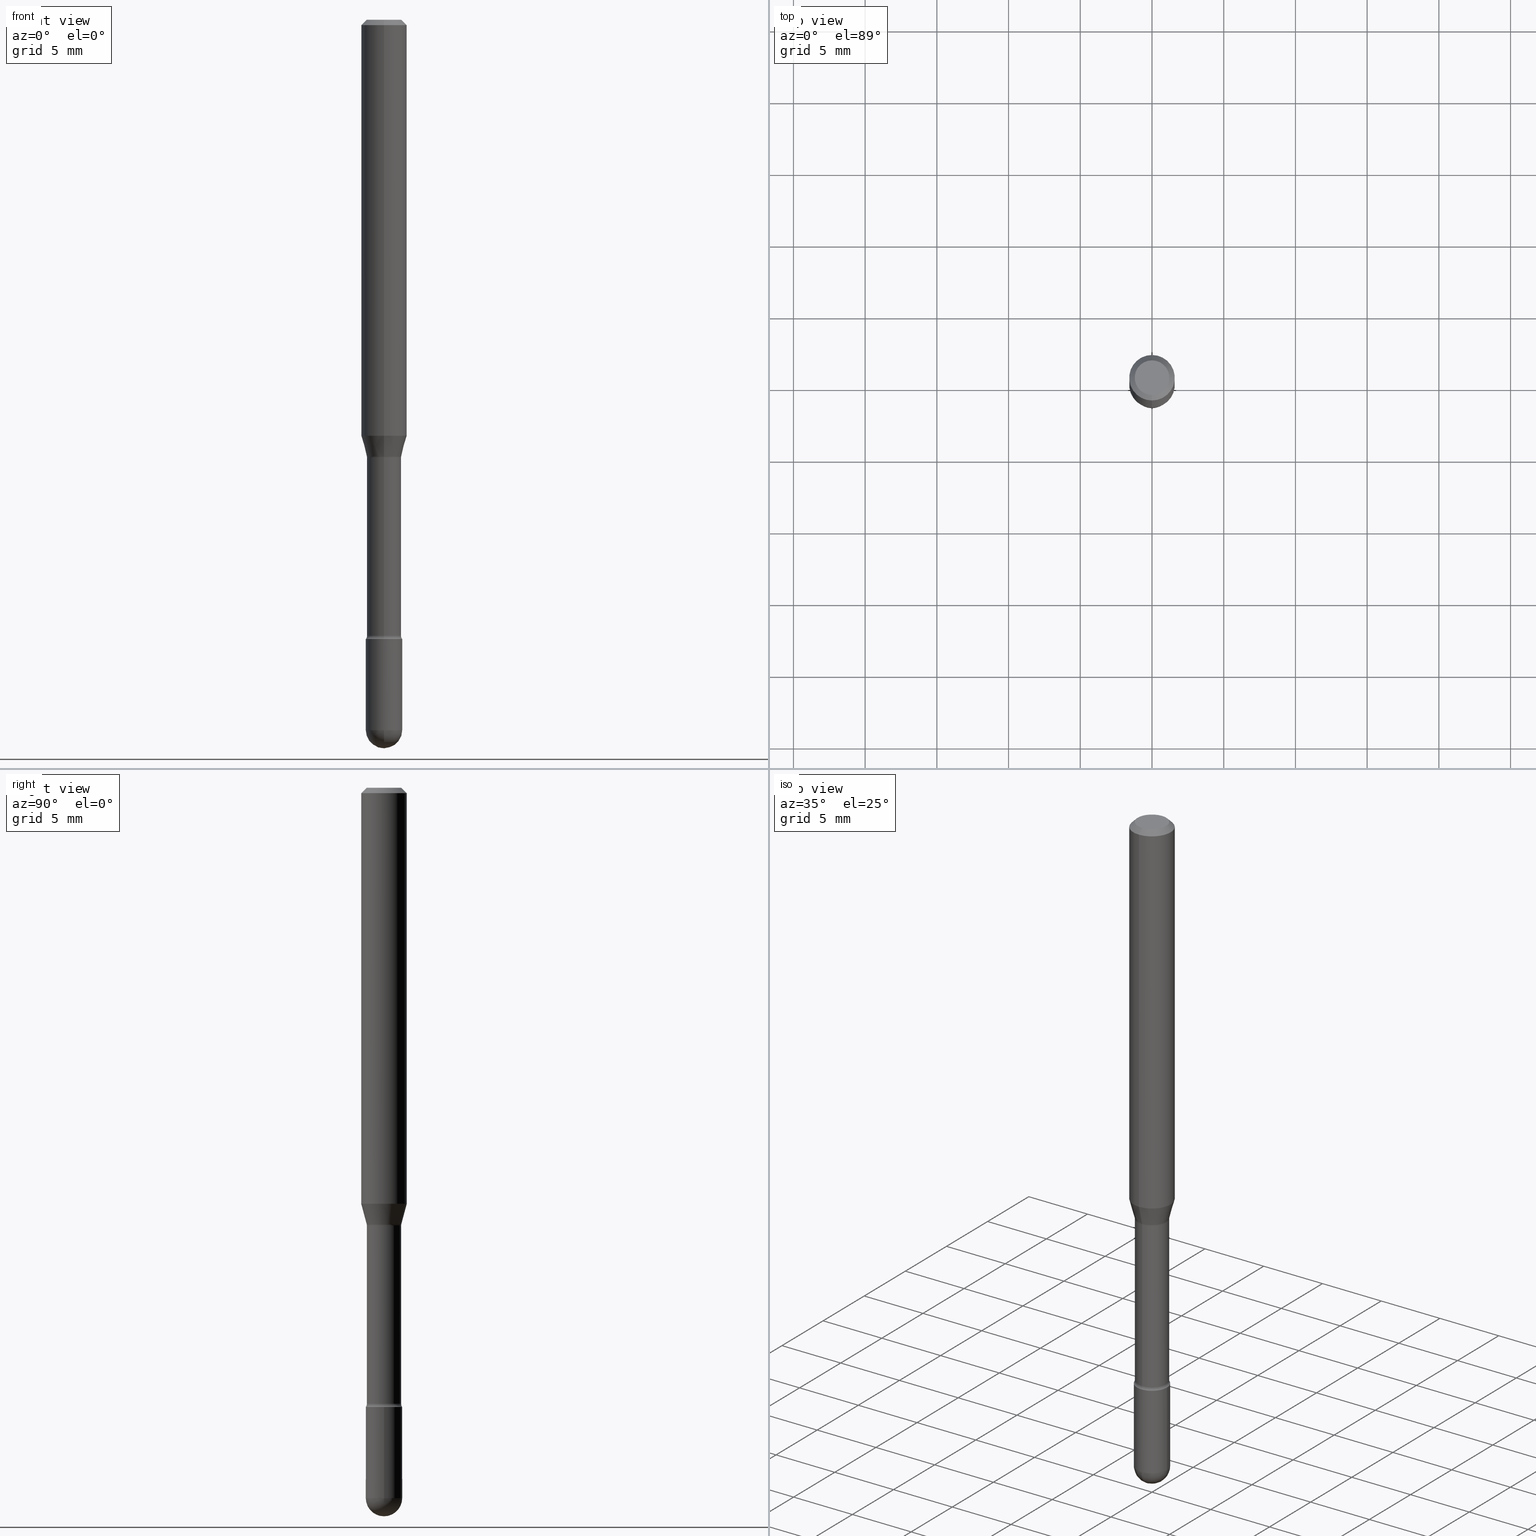
[diagram: canonical four-view strip — front | top / right | iso, engineering-drawing reading convention]
A machine part, canonical four-view strip (front | top / right | iso — engineering-drawing reading convention). The complete STEP part file that produces these views, byte-faithful:
ISO-10303-21;
HEADER;
FILE_DESCRIPTION (( 'STEP AP203' ),
    '1' );
FILE_NAME ('04561.STEP',
    '2024-04-09T21:56:24',
    ( '' ),
    ( '' ),
    'SwSTEP 2.0',
    'SolidWorks 2023',
    '' );
FILE_SCHEMA (( 'CONFIG_CONTROL_DESIGN' ));
ENDSEC;

DATA;
#1 = DIRECTION ( 'NONE',  ( -6.982962677686265922E-15, -1.000000000000000000, 3.491631476579074343E-15 ) ) ;
#2 = ORIENTED_EDGE ( 'NONE', *, *, #542, .F. ) ;
#3 = AXIS2_PLACEMENT_3D ( 'NONE', #305, #423, #33 ) ;
#4 = DIRECTION ( 'NONE',  ( -2.445468806185136877E-29, 3.491481338843145188E-15, 1.000000000000000000 ) ) ;
#5 = DIRECTION ( 'NONE',  ( 2.445363965564486438E-29, -3.491631476579074343E-15, -1.000000000000000000 ) ) ;
#6 = DIRECTION ( 'NONE',  ( -2.445363965564486438E-29, 3.491631476579074343E-15, 1.000000000000000000 ) ) ;
#7 = EDGE_CURVE ( 'NONE', #490, #357, #260, .T. ) ;
#8 = DIRECTION ( 'NONE',  ( -6.982962677686265922E-15, -1.000000000000000000, 3.491631476579074343E-15 ) ) ;
#9 = DIRECTION ( 'NONE',  ( 1.000000000000000000, 0.000000000000000000, 0.000000000000000000 ) ) ;
#10 = AXIS2_PLACEMENT_3D ( 'NONE', #205, #365, #239 ) ;
#11 = APPROVAL_PERSON_ORGANIZATION ( #229, #62, #283 ) ;
#12 = DIRECTION ( 'NONE',  ( -2.438088387897960049E-29, 3.491481338843145188E-15, 1.000000000000000000 ) ) ;
#13 = DIRECTION ( 'NONE',  ( 1.000000000000000000, -6.982962677686274599E-15, 0.000000000000000000 ) ) ;
#14 = CARTESIAN_POINT ( 'NONE',  ( 4.157296970514731878E-29, -5.935518276033347214E-15, -1.699999999999999956 ) ) ;
#15 =( LENGTH_UNIT ( ) NAMED_UNIT ( * ) SI_UNIT ( $, .METRE. ) );
#16 = ADVANCED_BREP_SHAPE_REPRESENTATION ( '04561', ( #319, #125, #374 ), #416 ) ;
#17 = CIRCLE ( 'NONE', #35, 0.05000000000000000278 ) ;
#18 = DIRECTION ( 'NONE',  ( -2.445363965564486438E-29, 3.491631476579074343E-15, 1.000000000000000000 ) ) ;
#19 = ORIENTED_EDGE ( 'NONE', *, *, #46, .T. ) ;
#20 = ORIENTED_EDGE ( 'NONE', *, *, #284, .F. ) ;
#21 = CARTESIAN_POINT ( 'NONE',  ( -3.281992458512251188E-16, -0.04700000000000420508, -1.201974787463810479 ) ) ;
#22 = ORIENTED_EDGE ( 'NONE', *, *, #36, .F. ) ;
#23 = CC_DESIGN_PERSON_AND_ORGANIZATION_ASSIGNMENT ( #255, #259, ( #538 ) ) ;
#24 = CARTESIAN_POINT ( 'NONE',  ( 2.929772231283601994E-29, -4.183297491093812851E-15, -1.198092501787272779 ) ) ;
#25 = ORIENTED_EDGE ( 'NONE', *, *, #107, .T. ) ;
#26 = DIRECTION ( 'NONE',  ( 1.000000000000000000, -6.982962677686275388E-15, 0.000000000000000000 ) ) ;
#27 = CIRCLE ( 'NONE', #236, 0.04749999999999999362 ) ;
#28 = APPROVAL_STATUS ( 'not_yet_approved' ) ;
#29 = PLANE ( 'NONE',  #291 ) ;
#30 = ORIENTED_EDGE ( 'NONE', *, *, #422, .T. ) ;
#31 = DATE_AND_TIME ( #504, #131 ) ;
#32 = EDGE_CURVE ( 'NONE', #300, #450, #198, .T. ) ;
#33 = DIRECTION ( 'NONE',  ( -6.982962677686265922E-15, -1.000000000000000000, 3.491631476579075526E-15 ) ) ;
#34 = AXIS2_PLACEMENT_3D ( 'NONE', #470, #39, #297 ) ;
#35 = AXIS2_PLACEMENT_3D ( 'NONE', #216, #474, #179 ) ;
#36 = EDGE_CURVE ( 'NONE', #153, #196, #71, .T. ) ;
#37 = LINE ( 'NONE', #562, #334 ) ;
#38 = DIRECTION ( 'NONE',  ( -6.982962677686265922E-15, -1.000000000000000000, 3.491631476579075526E-15 ) ) ;
#39 = DIRECTION ( 'NONE',  ( 1.000000000000000000, -7.105427357601001070E-15, 4.926317347199059819E-29 ) ) ;
#40 = ADVANCED_FACE ( 'NONE', ( #511 ), #214, .T. ) ;
#41 = CARTESIAN_POINT ( 'NONE',  ( -3.281992458512137296E-16, -0.04700000000000599532, -1.690999999999999837 ) ) ;
#42 = ORIENTED_EDGE ( 'NONE', *, *, #330, .T. ) ;
#43 = AXIS2_PLACEMENT_3D ( 'NONE', #512, #92, #262 ) ;
#44 = LOCAL_TIME ( 17, 56, 24.00000000000000000, #564 ) ;
#45 = ORIENTED_EDGE ( 'NONE', *, *, #58, .F. ) ;
#46 = EDGE_CURVE ( 'NONE', #553, #324, #220, .T. ) ;
#47 = DIRECTION ( 'NONE',  ( -2.445468806185136597E-29, 3.491481338843145583E-15, 1.000000000000000000 ) ) ;
#48 = DIRECTION ( 'NONE',  ( -6.982962677686265922E-15, -1.000000000000000000, 3.483106191921935554E-15 ) ) ;
#49 = APPLICATION_PROTOCOL_DEFINITION ( 'international standard', 'config_control_design', 1994, #491 ) ;
#50 = ORIENTED_EDGE ( 'NONE', *, *, #211, .T. ) ;
#51 = CONICAL_SURFACE ( 'NONE', #222, 0.04751111260566398542, 0.2617993877991498519 ) ;
#52 = CARTESIAN_POINT ( 'NONE',  ( 2.939391848563758392E-29, -4.196672540189851161E-15, -1.201974787463810701 ) ) ;
#53 = DIRECTION ( 'NONE',  ( -2.445468806185136877E-29, 3.491481338843145188E-15, 1.000000000000000000 ) ) ;
#54 = DIRECTION ( 'NONE',  ( -2.445363965564486438E-29, 3.491631476579074343E-15, 1.000000000000000000 ) ) ;
#55 = CARTESIAN_POINT ( 'NONE',  ( 4.157296970514731878E-29, -5.935518276033347214E-15, -1.699999999999999956 ) ) ;
#56 = ORIENTED_EDGE ( 'NONE', *, *, #340, .T. ) ;
#57 = CARTESIAN_POINT ( 'NONE',  ( -0.04999999999999999584, -6.016682075508689264E-15, -1.949999999999999734 ) ) ;
#58 = EDGE_CURVE ( 'NONE', #490, #553, #267, .T. ) ;
#59 = CIRCLE ( 'NONE', #174, 0.01499999999999997689 ) ;
#60 = CARTESIAN_POINT ( 'NONE',  ( 3.552713678800914786E-16, 0.04999999999999404227, -1.700000000000000178 ) ) ;
#61 = CIRCLE ( 'NONE', #292, 0.04751111260566398542 ) ;
#62 = APPROVAL ( #446, 'UNSPECIFIED' ) ;
#63 = ORIENTED_EDGE ( 'NONE', *, *, #58, .T. ) ;
#64 = EDGE_LOOP ( 'NONE', ( #500, #45, #30, #50 ) ) ;
#65 = DIRECTION ( 'NONE',  ( -6.982962677686265922E-15, -1.000000000000000000, 4.370956789862821150E-15 ) ) ;
#66 = ORIENTED_EDGE ( 'NONE', *, *, #144, .T. ) ;
#67 = CARTESIAN_POINT ( 'NONE',  ( 3.668045948346749783E-31, -5.237447214868640110E-17, -0.01500000000000008271 ) ) ;
#68 = ORIENTED_EDGE ( 'NONE', *, *, #284, .T. ) ;
#69 = ORIENTED_EDGE ( 'NONE', *, *, #256, .F. ) ;
#70 =( NAMED_UNIT ( * ) SI_UNIT ( $, .STERADIAN. ) SOLID_ANGLE_UNIT ( ) );
#71 = CIRCLE ( 'NONE', #515, 0.04751111260566398542 ) ;
#72 = DIRECTION ( 'NONE',  ( -2.445468806185136597E-29, 3.491481338843145583E-15, 1.000000000000000000 ) ) ;
#73 = VECTOR ( 'NONE', #186, 39.37007874015748143 ) ;
#74 = ORIENTED_EDGE ( 'NONE', *, *, #445, .T. ) ;
#75 = ADVANCED_FACE ( 'NONE', ( #128 ), #481, .T. ) ;
#76 = VERTEX_POINT ( 'NONE', #175 ) ;
#77 = ORIENTED_EDGE ( 'NONE', *, *, #256, .T. ) ;
#78 = DIRECTION ( 'NONE',  ( -6.982962677686265133E-15, -1.000000000000000000, 5.812442539711187545E-15 ) ) ;
#79 = PERSON_AND_ORGANIZATION ( #98, #342 ) ;
#80 = EDGE_CURVE ( 'NONE', #553, #490, #383, .T. ) ;
#81 = CARTESIAN_POINT ( 'NONE',  ( 4.768664172061015467E-29, -6.808388610744132920E-15, -1.949999999999999734 ) ) ;
#82 = AXIS2_PLACEMENT_3D ( 'NONE', #443, #145, #141 ) ;
#83 = CALENDAR_DATE ( 2024, 9, 4 ) ;
#84 = AXIS2_PLACEMENT_3D ( 'NONE', #55, #12, #353 ) ;
#85 = AXIS2_PLACEMENT_3D ( 'NONE', #143, #526, #147 ) ;
#86 = ADVANCED_FACE ( 'NONE', ( #519 ), #471, .F. ) ;
#87 = ORIENTED_EDGE ( 'NONE', *, *, #387, .F. ) ;
#88 = APPROVAL_DATE_TIME ( #427, #62 ) ;
#89 = DIRECTION ( 'NONE',  ( 6.982962677686265133E-15, 1.000000000000000000, -5.463695987328525648E-15 ) ) ;
#90 = ORIENTED_EDGE ( 'NONE', *, *, #140, .T. ) ;
#91 = EDGE_CURVE ( 'NONE', #412, #300, #346, .T. ) ;
#92 = DIRECTION ( 'NONE',  ( -2.445363965564485877E-29, 3.491631476579074343E-15, 1.000000000000000000 ) ) ;
#93 = ADVANCED_FACE ( 'NONE', ( #335 ), #254, .T. ) ;
#94 = CIRCLE ( 'NONE', #227, 0.04999999999999999584 ) ;
#95 = ORIENTED_EDGE ( 'NONE', *, *, #154, .F. ) ;
#96 = TOROIDAL_SURFACE ( 'NONE', #167, 0.06199999999999999956, 0.01499999999999998557 ) ;
#97 = DIRECTION ( 'NONE',  ( -6.982962677686265133E-15, -1.000000000000000000, 5.463695987328526437E-15 ) ) ;
#98 = PERSON ( 'UNSPECIFIED', 'UNSPECIFIED', 'UNSPECIFIED', ('UNSPECIFIED'), ('UNSPECIFIED'), ('UNSPECIFIED') ) ;
#99 = CARTESIAN_POINT ( 'NONE',  ( -1.169113584055446105E-44, 1.669184350826100908E-30, 4.780733988912460139E-16 ) ) ;
#100 = PERSON_AND_ORGANIZATION ( #98, #342 ) ;
#101 = FACE_OUTER_BOUND ( 'NONE', #271, .T. ) ;
#102 = FACE_OUTER_BOUND ( 'NONE', #549, .T. ) ;
#103 = DIRECTION ( 'NONE',  ( -2.445468806185136597E-29, 3.491481338843145583E-15, 1.000000000000000000 ) ) ;
#104 = CIRCLE ( 'NONE', #166, 0.05000000000000000278 ) ;
#105 = LINE ( 'NONE', #266, #333 ) ;
#106 = DIRECTION ( 'NONE',  ( -2.445363965564486438E-29, 3.491631476579074343E-15, 1.000000000000000000 ) ) ;
#107 = EDGE_CURVE ( 'NONE', #153, #177, #563, .T. ) ;
#108 = CARTESIAN_POINT ( 'NONE',  ( 0.04999999999999999584, -6.721101577273053797E-15, -1.949999999999999734 ) ) ;
#109 = EDGE_LOOP ( 'NONE', ( #438, #77 ) ) ;
#110 = CLOSED_SHELL ( 'NONE', ( #556, #93, #475, #400, #150, #478, #510, #315, #75, #329, #86, #487, #134, #547 ) ) ;
#111 = CIRCLE ( 'NONE', #348, 0.05000000000000000278 ) ;
#112 = CARTESIAN_POINT ( 'NONE',  ( 4.135287751259066496E-29, -5.904094943983759361E-15, -1.691000000000000059 ) ) ;
#113 = ORIENTED_EDGE ( 'NONE', *, *, #389, .T. ) ;
#114 = DIRECTION ( 'NONE',  ( 6.982962677686265922E-15, 1.000000000000000000, -3.483106191921935554E-15 ) ) ;
#115 = ORIENTED_EDGE ( 'NONE', *, *, #107, .F. ) ;
#116 = DIRECTION ( 'NONE',  ( 2.445363965564486438E-29, -3.491631476579074343E-15, -1.000000000000000000 ) ) ;
#117 = PERSON_AND_ORGANIZATION ( #98, #342 ) ;
#118 = CARTESIAN_POINT ( 'NONE',  ( -4.329436860165075429E-16, -0.06200000000000597394, -1.690999999999999837 ) ) ;
#119 = VECTOR ( 'NONE', #245, 39.37007874015748143 ) ;
#120 = CC_DESIGN_APPROVAL ( #492, ( #441 ) ) ;
#121 = ORIENTED_EDGE ( 'NONE', *, *, #375, .T. ) ;
#122 = CARTESIAN_POINT ( 'NONE',  ( 3.339550858072887499E-16, 0.04699999999999580208, -1.201974787463810701 ) ) ;
#123 = DIRECTION ( 'NONE',  ( -2.445363965564486438E-29, 3.491631476579074343E-15, 1.000000000000000000 ) ) ;
#124 = COORDINATED_UNIVERSAL_TIME_OFFSET ( 5, 0, .BEHIND. ) ;
#125 = MANIFOLD_SOLID_BREP ( 'Body-Move/Copy2[2]', #110 ) ;
#126 = CC_DESIGN_PERSON_AND_ORGANIZATION_ASSIGNMENT ( #130, #298, ( #538 ) ) ;
#127 = FACE_OUTER_BOUND ( 'NONE', #275, .T. ) ;
#128 = FACE_OUTER_BOUND ( 'NONE', #243, .T. ) ;
#129 = AXIS2_PLACEMENT_3D ( 'NONE', #323, #195, #65 ) ;
#130 = PERSON_AND_ORGANIZATION ( #98, #342 ) ;
#131 = LOCAL_TIME ( 17, 56, 24.00000000000000000, #289 ) ;
#132 = ORIENTED_EDGE ( 'NONE', *, *, #36, .T. ) ;
#133 = DIRECTION ( 'NONE',  ( -1.000000000000000000, 6.982962677686265133E-15, -4.883557194083112340E-29 ) ) ;
#134 = ADVANCED_FACE ( 'NONE', ( #127 ), #468, .T. ) ;
#135 = EDGE_LOOP ( 'NONE', ( #115, #132, #244, #210 ) ) ;
#136 = PLANE ( 'NONE',  #84 ) ;
#137 = CONICAL_SURFACE ( 'NONE', #199, 0.06250000000000000000, 0.7853981633974483900 ) ;
#138 = AXIS2_PLACEMENT_3D ( 'NONE', #184, #351, #442 ) ;
#139 = CARTESIAN_POINT ( 'NONE',  ( 4.440892098500904235E-16, 0.06249999999999600320, -1.142153212482682534 ) ) ;
#140 = EDGE_CURVE ( 'NONE', #324, #388, #17, .T. ) ;
#141 = DIRECTION ( 'NONE',  ( 1.000000000000000000, -6.982962677686275388E-15, 0.000000000000000000 ) ) ;
#142 = MECHANICAL_CONTEXT ( 'NONE', #433, 'mechanical' ) ;
#143 = CARTESIAN_POINT ( 'NONE',  ( 2.939391848563758392E-29, -4.196672540189851161E-15, -1.201974787463810701 ) ) ;
#144 = EDGE_CURVE ( 'NONE', #177, #432, #263, .T. ) ;
#145 = DIRECTION ( 'NONE',  ( -2.445468806185136597E-29, 3.491481338843145583E-15, 1.000000000000000000 ) ) ;
#146 = TOROIDAL_SURFACE ( 'NONE', #278, 0.06200000000000006894, 0.01499999999999998036 ) ;
#147 = DIRECTION ( 'NONE',  ( -6.982962677686265922E-15, -1.000000000000000000, 3.491631476579074343E-15 ) ) ;
#148 = DIRECTION ( 'NONE',  ( 1.000000000000000000, -6.982962677686274599E-15, 0.000000000000000000 ) ) ;
#149 = CARTESIAN_POINT ( 'NONE',  ( -3.773273898774340269E-16, -0.04749999999999999362, 8.311259460841729557E-17 ) ) ;
#150 = ADVANCED_FACE ( 'NONE', ( #223 ), #537, .T. ) ;
#151 = ORIENTED_EDGE ( 'NONE', *, *, #306, .T. ) ;
#152 = CARTESIAN_POINT ( 'NONE',  ( 0.000000000000000000, 0.000000000000000000, 0.000000000000000000 ) ) ;
#153 = VERTEX_POINT ( 'NONE', #345 ) ;
#154 = EDGE_CURVE ( 'NONE', #517, #488, #536, .T. ) ;
#155 = VERTEX_POINT ( 'NONE', #529 ) ;
#156 = CIRCLE ( 'NONE', #82, 0.04999999999999999584 ) ;
#157 = DIRECTION ( 'NONE',  ( -6.982962677686265133E-15, -1.000000000000000000, 2.874956872025123732E-15 ) ) ;
#158 = LOCAL_TIME ( 17, 56, 24.00000000000000000, #455 ) ;
#159 = ORIENTED_EDGE ( 'NONE', *, *, #294, .F. ) ;
#160 = CARTESIAN_POINT ( 'NONE',  ( 3.668045948346749783E-31, -5.237447214868640110E-17, -0.01500000000000008271 ) ) ;
#161 = ORIENTED_EDGE ( 'NONE', *, *, #445, .F. ) ;
#162 = CALENDAR_DATE ( 2024, 9, 4 ) ;
#163 = ORIENTED_EDGE ( 'NONE', *, *, #80, .T. ) ;
#164 = FACE_OUTER_BOUND ( 'NONE', #204, .T. ) ;
#165 = ORIENTED_EDGE ( 'NONE', *, *, #294, .T. ) ;
#166 = AXIS2_PLACEMENT_3D ( 'NONE', #14, #47, #148 ) ;
#167 = AXIS2_PLACEMENT_3D ( 'NONE', #52, #398, #178 ) ;
#168 = DIRECTION ( 'NONE',  ( -7.105427357601001070E-15, -1.000000000000000000, 0.000000000000000000 ) ) ;
#169 = DATE_TIME_ROLE ( 'creation_date' ) ;
#170 = CARTESIAN_POINT ( 'NONE',  ( 3.375867592983759393E-16, 0.04751111260565980127, -1.198092501787273001 ) ) ;
#171 = FACE_OUTER_BOUND ( 'NONE', #64, .T. ) ;
#172 = DIRECTION ( 'NONE',  ( -1.000000000000000000, 6.982962677686265133E-15, -4.883557194083112340E-29 ) ) ;
#173 = ORIENTED_EDGE ( 'NONE', *, *, #435, .F. ) ;
#174 = AXIS2_PLACEMENT_3D ( 'NONE', #118, #293, #190 ) ;
#175 = CARTESIAN_POINT ( 'NONE',  ( -4.364351673553912750E-16, -0.06250000000000005551, -0.01499999999999986587 ) ) ;
#176 = LINE ( 'NONE', #522, #505 ) ;
#177 = VERTEX_POINT ( 'NONE', #139 ) ;
#178 = DIRECTION ( 'NONE',  ( -6.982962677686265922E-15, -1.000000000000000000, 3.491631476579074343E-15 ) ) ;
#179 = DIRECTION ( 'NONE',  ( -6.982962677686265133E-15, -1.000000000000000000, 5.463695987328526437E-15 ) ) ;
#180 = AXIS2_PLACEMENT_3D ( 'NONE', #565, #172, #339 ) ;
#181 = CIRCLE ( 'NONE', #372, 0.04999999999999999584 ) ;
#182 = DIRECTION ( 'NONE',  ( -2.445363965564486438E-29, 3.491631476579074343E-15, 1.000000000000000000 ) ) ;
#183 = EDGE_CURVE ( 'NONE', #432, #76, #105, .T. ) ;
#184 = CARTESIAN_POINT ( 'NONE',  ( 4.768664172061016027E-29, -6.808388610744133709E-15, -1.949999999999999956 ) ) ;
#185 = DIRECTION ( 'NONE',  ( 7.105427357600993970E-15, 1.000000000000000000, 0.000000000000000000 ) ) ;
#186 = DIRECTION ( 'NONE',  ( -2.445363965564486438E-29, 3.491631476579074343E-15, 1.000000000000000000 ) ) ;
#187 = CIRCLE ( 'NONE', #482, 0.01499999999999999424 ) ;
#188 = CC_DESIGN_SECURITY_CLASSIFICATION ( #441, ( #538 ) ) ;
#189 = CARTESIAN_POINT ( 'NONE',  ( 4.768664172061015467E-29, -6.808388610744132920E-15, -1.949999999999999734 ) ) ;
#190 = DIRECTION ( 'NONE',  ( -6.982962677686266711E-15, -1.000000000000000000, 0.000000000000000000 ) ) ;
#191 = VERTEX_POINT ( 'NONE', #314 ) ;
#192 = ORIENTED_EDGE ( 'NONE', *, *, #349, .T. ) ;
#193 = CARTESIAN_POINT ( 'NONE',  ( 0.000000000000000000, 0.000000000000000000, 0.000000000000000000 ) ) ;
#194 = EDGE_CURVE ( 'NONE', #155, #494, #396, .T. ) ;
#195 = DIRECTION ( 'NONE',  ( -2.445363965564486438E-29, 3.491631476579074343E-15, 1.000000000000000000 ) ) ;
#196 = VERTEX_POINT ( 'NONE', #440 ) ;
#197 = CALENDAR_DATE ( 2024, 9, 4 ) ;
#198 = CIRCLE ( 'NONE', #277, 0.04999999999999999584 ) ;
#199 = AXIS2_PLACEMENT_3D ( 'NONE', #160, #116, #114 ) ;
#200 = LOCAL_TIME ( 17, 56, 24.00000000000000000, #367 ) ;
#201 = CARTESIAN_POINT ( 'NONE',  ( -3.491481338842715752E-16, -0.05000000000000592165, -1.699999999999999734 ) ) ;
#202 = ORIENTED_EDGE ( 'NONE', *, *, #330, .F. ) ;
#203 = APPROVAL_ROLE ( '' ) ;
#204 = EDGE_LOOP ( 'NONE', ( #530, #19, #90, #513 ) ) ;
#205 = CARTESIAN_POINT ( 'NONE',  ( 0.000000000000000000, 0.000000000000000000, 0.000000000000000000 ) ) ;
#206 = ORIENTED_EDGE ( 'NONE', *, *, #183, .F. ) ;
#207 = APPROVAL_DATE_TIME ( #419, #492 ) ;
#208 = ADVANCED_FACE ( 'NONE', ( #265 ), #136, .T. ) ;
#209 = CARTESIAN_POINT ( 'NONE',  ( 4.135287751259066496E-29, -5.904094943983759361E-15, -1.691000000000000059 ) ) ;
#210 = ORIENTED_EDGE ( 'NONE', *, *, #144, .F. ) ;
#211 = EDGE_CURVE ( 'NONE', #388, #324, #111, .T. ) ;
#212 = VECTOR ( 'NONE', #368, 39.37007874015748143 ) ;
#213 = CC_DESIGN_APPROVAL ( #62, ( #358 ) ) ;
#214 = SPHERICAL_SURFACE ( 'NONE', #180, 0.05000000000000000278 ) ;
#215 = LINE ( 'NONE', #338, #463 ) ;
#216 = CARTESIAN_POINT ( 'NONE',  ( 4.157118741459626720E-29, -5.935773510184426185E-15, -1.699999999999999956 ) ) ;
#217 = CARTESIAN_POINT ( 'NONE',  ( 4.135110465769546823E-29, -5.904348826895214660E-15, -1.691000000000000059 ) ) ;
#218 = ORIENTED_EDGE ( 'NONE', *, *, #7, .T. ) ;
#219 = DIRECTION ( 'NONE',  ( -2.445363965564486438E-29, 3.491631476579074343E-15, 1.000000000000000000 ) ) ;
#220 = CIRCLE ( 'NONE', #34, 0.01499999999999997689 ) ;
#221 = DIRECTION ( 'NONE',  ( 1.000000000000000000, -6.982962677686275388E-15, 0.000000000000000000 ) ) ;
#222 = AXIS2_PLACEMENT_3D ( 'NONE', #24, #360, #157 ) ;
#223 = FACE_OUTER_BOUND ( 'NONE', #497, .T. ) ;
#224 = EDGE_LOOP ( 'NONE', ( #402, #250, #472, #273 ) ) ;
#225 = CARTESIAN_POINT ( 'NONE',  ( 4.364351673553919652E-16, 0.06249999999999995143, -0.01500000000000030129 ) ) ;
#226 = CARTESIAN_POINT ( 'NONE',  ( 2.022790497563673918E-45, -2.889690179141050532E-31, -8.273990052908872092E-17 ) ) ;
#227 = AXIS2_PLACEMENT_3D ( 'NONE', #189, #72, #26 ) ;
#228 = AXIS2_PLACEMENT_3D ( 'NONE', #557, #133, #89 ) ;
#229 = PERSON_AND_ORGANIZATION ( #98, #342 ) ;
#230 = CARTESIAN_POINT ( 'NONE',  ( 4.157296970514731878E-29, -5.935518276033347214E-15, -1.699999999999999956 ) ) ;
#231 = DIRECTION ( 'NONE',  ( -2.445363965564486438E-29, 3.491631476579074343E-15, 1.000000000000000000 ) ) ;
#232 = EDGE_CURVE ( 'NONE', #153, #520, #187, .T. ) ;
#233 = EDGE_CURVE ( 'NONE', #494, #76, #397, .T. ) ;
#234 = CARTESIAN_POINT ( 'NONE',  ( -4.364351673553637635E-16, -0.06250000000000399680, -1.142153212482682090 ) ) ;
#235 = ORIENTED_EDGE ( 'NONE', *, *, #534, .F. ) ;
#236 = AXIS2_PLACEMENT_3D ( 'NONE', #226, #270, #532 ) ;
#237 =( CONVERSION_BASED_UNIT ( 'INCH', #452 ) LENGTH_UNIT ( ) NAMED_UNIT ( #287 ) );
#238 = APPROVAL_PERSON_ORGANIZATION ( #377, #554, #555 ) ;
#239 = DIRECTION ( 'NONE',  ( 1.000000000000000000, -6.982962677686265922E-15, 4.876176775795936353E-29 ) ) ;
#240 = EDGE_LOOP ( 'NONE', ( #2, #192, #496, #410, #69 ) ) ;
#241 = EDGE_LOOP ( 'NONE', ( #202, #66, #405, #523 ) ) ;
#242 = FACE_OUTER_BOUND ( 'NONE', #247, .T. ) ;
#243 = EDGE_LOOP ( 'NONE', ( #173, #161, #326, #502 ) ) ;
#244 = ORIENTED_EDGE ( 'NONE', *, *, #534, .T. ) ;
#245 = DIRECTION ( 'NONE',  ( -2.445363965564486438E-29, 3.491631476579074343E-15, 1.000000000000000000 ) ) ;
#246 = EDGE_LOOP ( 'NONE', ( #63, #151, #20, #327 ) ) ;
#247 = EDGE_LOOP ( 'NONE', ( #159, #332, #121, #409 ) ) ;
#248 = AXIS2_PLACEMENT_3D ( 'NONE', #509, #5, #466 ) ;
#249 = CARTESIAN_POINT ( 'NONE',  ( 2.939265832781034227E-29, -4.196853001963084111E-15, -1.201974787463810479 ) ) ;
#250 = ORIENTED_EDGE ( 'NONE', *, *, #91, .T. ) ;
#251 = DATE_AND_TIME ( #461, #44 ) ;
#252 = ORIENTED_EDGE ( 'NONE', *, *, #389, .F. ) ;
#253 = EDGE_CURVE ( 'NONE', #450, #517, #176, .T. ) ;
#254 = CYLINDRICAL_SURFACE ( 'NONE', #3, 0.04700000000000004868 ) ;
#255 = PERSON_AND_ORGANIZATION ( #98, #342 ) ;
#256 = EDGE_CURVE ( 'NONE', #488, #517, #104, .T. ) ;
#257 = CARTESIAN_POINT ( 'NONE',  ( -1.169113584055446105E-44, 1.669184350826100908E-30, 4.780733988912460139E-16 ) ) ;
#258 = CARTESIAN_POINT ( 'NONE',  ( -3.281992458512548490E-16, -0.04700000000000004868, 6.421800782904627861E-16 ) ) ;
#259 = PERSON_AND_ORGANIZATION_ROLE ( 'design_supplier' ) ;
#260 = LINE ( 'NONE', #258, #503 ) ;
#261 = AXIS2_PLACEMENT_3D ( 'NONE', #217, #123, #78 ) ;
#262 = DIRECTION ( 'NONE',  ( -6.982962677686265922E-15, -1.000000000000000000, 3.491631476579074343E-15 ) ) ;
#263 = CIRCLE ( 'NONE', #268, 0.06250000000000000000 ) ;
#264 = CARTESIAN_POINT ( 'NONE',  ( 3.668045948346749783E-31, -5.237447214868640110E-17, -0.01500000000000008271 ) ) ;
#265 = FACE_OUTER_BOUND ( 'NONE', #109, .T. ) ;
#266 = CARTESIAN_POINT ( 'NONE',  ( -4.364351673553916201E-16, -0.06250000000000000000, 6.963003661774382343E-16 ) ) ;
#267 = CIRCLE ( 'NONE', #413, 0.04700000000000009032 ) ;
#268 = AXIS2_PLACEMENT_3D ( 'NONE', #347, #6, #476 ) ;
#269 = CC_DESIGN_PERSON_AND_ORGANIZATION_ASSIGNMENT ( #100, #437, ( #506 ) ) ;
#270 = DIRECTION ( 'NONE',  ( -2.445363965564486438E-29, 3.491631476579074343E-15, 1.000000000000000000 ) ) ;
#271 = EDGE_LOOP ( 'NONE', ( #22, #309, #113, #282 ) ) ;
#272 = CYLINDRICAL_SURFACE ( 'NONE', #341, 0.06250000000000000000 ) ;
#273 = ORIENTED_EDGE ( 'NONE', *, *, #340, .F. ) ;
#274 = DIRECTION ( 'NONE',  ( 1.000000000000000000, -6.982962677686265922E-15, 4.876176775795936353E-29 ) ) ;
#275 = EDGE_LOOP ( 'NONE', ( #308, #163, #218, #252 ) ) ;
#276 = ORIENTED_EDGE ( 'NONE', *, *, #140, .F. ) ;
#277 = AXIS2_PLACEMENT_3D ( 'NONE', #81, #370, #221 ) ;
#278 = AXIS2_PLACEMENT_3D ( 'NONE', #112, #408, #501 ) ;
#279 = APPROVAL_PERSON_ORGANIZATION ( #79, #492, #203 ) ;
#280 = DIRECTION ( 'NONE',  ( -6.982962677686265922E-15, -1.000000000000000000, 3.491631476579074343E-15 ) ) ;
#281 = CC_DESIGN_DATE_AND_TIME_ASSIGNMENT ( #251, #550, ( #441 ) ) ;
#282 = ORIENTED_EDGE ( 'NONE', *, *, #302, .F. ) ;
#283 = APPROVAL_ROLE ( '' ) ;
#284 = EDGE_CURVE ( 'NONE', #357, #520, #425, .T. ) ;
#285 = DIRECTION ( 'NONE',  ( -2.445468806185136597E-29, 3.491481338843145583E-15, 1.000000000000000000 ) ) ;
#286 = ORIENTED_EDGE ( 'NONE', *, *, #32, .F. ) ;
#287 = DIMENSIONAL_EXPONENTS ( 1.000000000000000000, 0.000000000000000000, 0.000000000000000000, 0.000000000000000000, 0.000000000000000000, 0.000000000000000000, 0.000000000000000000 ) ;
#288 = DIRECTION ( 'NONE',  ( 1.000000000000000000, -6.982962677686275388E-15, 0.000000000000000000 ) ) ;
#289 = COORDINATED_UNIVERSAL_TIME_OFFSET ( 5, 0, .BEHIND. ) ;
#290 = ORIENTED_EDGE ( 'NONE', *, *, #302, .T. ) ;
#291 = AXIS2_PLACEMENT_3D ( 'NONE', #406, #453, #541 ) ;
#292 = AXIS2_PLACEMENT_3D ( 'NONE', #480, #54, #485 ) ;
#293 = DIRECTION ( 'NONE',  ( -1.000000000000000000, 6.982962677686265922E-15, -4.883557194083112901E-29 ) ) ;
#294 = EDGE_CURVE ( 'NONE', #464, #155, #27, .T. ) ;
#295 = ORIENTED_EDGE ( 'NONE', *, *, #296, .F. ) ;
#296 = EDGE_CURVE ( 'NONE', #450, #191, #156, .T. ) ;
#297 = DIRECTION ( 'NONE',  ( 7.105427357601006592E-15, 1.000000000000000000, 0.000000000000000000 ) ) ;
#298 = PERSON_AND_ORGANIZATION_ROLE ( 'creator' ) ;
#299 = CARTESIAN_POINT ( 'NONE',  ( -0.05000000000000000278, -6.016682075508689264E-15, -1.699999999999999956 ) ) ;
#300 = VERTEX_POINT ( 'NONE', #479 ) ;
#301 = PERSON_AND_ORGANIZATION_ROLE ( 'classification_officer' ) ;
#302 = EDGE_CURVE ( 'NONE', #196, #357, #354, .T. ) ;
#303 = TOROIDAL_SURFACE ( 'NONE', #451, 0.06200000000000006894, 0.01499999999999998036 ) ;
#304 = TOROIDAL_SURFACE ( 'NONE', #85, 0.06199999999999999956, 0.01499999999999998557 ) ;
#305 = CARTESIAN_POINT ( 'NONE',  ( -1.169113584055446105E-44, 1.669184350826100908E-30, 4.780733988912460139E-16 ) ) ;
#306 = EDGE_CURVE ( 'NONE', #553, #520, #316, .T. ) ;
#307 = CARTESIAN_POINT ( 'NONE',  ( 2.929772231283601994E-29, -4.183297491093812851E-15, -1.198092501787272779 ) ) ;
#308 = ORIENTED_EDGE ( 'NONE', *, *, #306, .F. ) ;
#309 = ORIENTED_EDGE ( 'NONE', *, *, #232, .T. ) ;
#310 = CARTESIAN_POINT ( 'NONE',  ( 2.939265832781034227E-29, -4.196853001963084111E-15, -1.201974787463810479 ) ) ;
#311 = CIRCLE ( 'NONE', #363, 0.04700000000000000705 ) ;
#312 = AXIS2_PLACEMENT_3D ( 'NONE', #518, #219, #384 ) ;
#313 = DIRECTION ( 'NONE',  ( 4.937700262164548042E-15, 0.7071067811865451302, -0.7071067811865499042 ) ) ;
#314 = CARTESIAN_POINT ( 'NONE',  ( 3.491481338843609137E-16, 0.04999999999999318184, -1.949999999999999956 ) ) ;
#315 = ADVANCED_FACE ( 'NONE', ( #318 ), #272, .T. ) ;
#316 = LINE ( 'NONE', #483, #73 ) ;
#317 = VECTOR ( 'NONE', #337, 39.37007874015748854 ) ;
#318 = FACE_OUTER_BOUND ( 'NONE', #241, .T. ) ;
#319 = MANIFOLD_SOLID_BREP ( 'Body-Move/Copy2[1]', #524 ) ;
#320 = FACE_OUTER_BOUND ( 'NONE', #240, .T. ) ;
#321 = FACE_OUTER_BOUND ( 'NONE', #458, .T. ) ;
#322 = AXIS2_PLACEMENT_3D ( 'NONE', #431, #559, #168 ) ;
#323 = CARTESIAN_POINT ( 'NONE',  ( 2.792980308958869035E-29, -3.987978107780441348E-15, -1.142153212482682312 ) ) ;
#324 = VERTEX_POINT ( 'NONE', #60 ) ;
#325 = LINE ( 'NONE', #489, #119 ) ;
#326 = ORIENTED_EDGE ( 'NONE', *, *, #194, .T. ) ;
#327 = ORIENTED_EDGE ( 'NONE', *, *, #7, .F. ) ;
#328 =( NAMED_UNIT ( * ) PLANE_ANGLE_UNIT ( ) SI_UNIT ( $, .RADIAN. ) );
#329 = ADVANCED_FACE ( 'NONE', ( #499 ), #29, .F. ) ;
#330 = EDGE_CURVE ( 'NONE', #177, #494, #325, .T. ) ;
#331 = DIRECTION ( 'NONE',  ( -6.982962677686266711E-15, -1.000000000000000000, 3.491631476579074343E-15 ) ) ;
#332 = ORIENTED_EDGE ( 'NONE', *, *, #435, .T. ) ;
#333 = VECTOR ( 'NONE', #399, 39.37007874015748143 ) ;
#334 = VECTOR ( 'NONE', #336, 39.37007874015748143 ) ;
#335 = FACE_OUTER_BOUND ( 'NONE', #246, .T. ) ;
#336 = DIRECTION ( 'NONE',  ( -1.807323732225327378E-15, -0.2588190451025177974, 0.9659258262890690894 ) ) ;
#337 = DIRECTION ( 'NONE',  ( 1.839019923739597160E-15, 0.2588190451025245142, 0.9659258262890670910 ) ) ;
#338 = CARTESIAN_POINT ( 'NONE',  ( -0.04999999999999999584, 3.552713678800500634E-16, -2.459467545127452961E-30 ) ) ;
#339 = DIRECTION ( 'NONE',  ( 6.982962677686265133E-15, 1.000000000000000000, -5.463695987328525648E-15 ) ) ;
#340 = EDGE_CURVE ( 'NONE', #191, #407, #181, .T. ) ;
#341 = AXIS2_PLACEMENT_3D ( 'NONE', #444, #390, #280 ) ;
#342 = ORGANIZATION ( 'UNSPECIFIED', 'UNSPECIFIED', '' ) ;
#343 = ORIENTED_EDGE ( 'NONE', *, *, #211, .F. ) ;
#344 = DIRECTION ( 'NONE',  ( -2.445363965564486438E-29, 3.491631476579074343E-15, 1.000000000000000000 ) ) ;
#345 = CARTESIAN_POINT ( 'NONE',  ( 3.908379845742332554E-16, 0.04751111260565980127, -1.198092501787273001 ) ) ;
#346 = CIRCLE ( 'NONE', #322, 0.05000000000000000278 ) ;
#347 = CARTESIAN_POINT ( 'NONE',  ( 2.792980308958869035E-29, -3.987978107780441348E-15, -1.142153212482682312 ) ) ;
#348 = AXIS2_PLACEMENT_3D ( 'NONE', #392, #182, #97 ) ;
#349 = EDGE_CURVE ( 'NONE', #407, #300, #94, .T. ) ;
#350 = DIRECTION ( 'NONE',  ( -6.982962677686265922E-15, -1.000000000000000000, 2.906221269855598900E-15 ) ) ;
#351 = DIRECTION ( 'NONE',  ( 1.000000000000000000, -6.982962677686265922E-15, 4.883557194083112340E-29 ) ) ;
#352 = CARTESIAN_POINT ( 'NONE',  ( -4.329436860165190307E-16, -0.06200000000000419759, -1.201974787463810479 ) ) ;
#353 = DIRECTION ( 'NONE',  ( 1.000000000000000000, -6.982962677686265922E-15, 4.876176775795935793E-29 ) ) ;
#354 = CIRCLE ( 'NONE', #493, 0.01499999999999999424 ) ;
#355 = CIRCLE ( 'NONE', #138, 0.05000000000000000278 ) ;
#356 = DIRECTION ( 'NONE',  ( -2.445363965564486438E-29, 3.491631476579074343E-15, 1.000000000000000000 ) ) ;
#357 = VERTEX_POINT ( 'NONE', #21 ) ;
#358 = PRODUCT_DEFINITION ( 'UNKNOWN', '', #538, #535 ) ;
#359 = LINE ( 'NONE', #539, #212 ) ;
#360 = DIRECTION ( 'NONE',  ( -2.445363965564486438E-29, 3.491631476579074343E-15, 1.000000000000000000 ) ) ;
#361 = ORIENTED_EDGE ( 'NONE', *, *, #232, .F. ) ;
#362 = ORIENTED_EDGE ( 'NONE', *, *, #566, .T. ) ;
#363 = AXIS2_PLACEMENT_3D ( 'NONE', #249, #356, #548 ) ;
#364 = APPLICATION_PROTOCOL_DEFINITION ( 'international standard', 'config_control_design', 1994, #433 ) ;
#365 = DIRECTION ( 'NONE',  ( -2.445468806185136597E-29, 3.491481338843145583E-15, 1.000000000000000000 ) ) ;
#366 = EDGE_LOOP ( 'NONE', ( #56, #447, #95, #460, #551 ) ) ;
#367 = COORDINATED_UNIVERSAL_TIME_OFFSET ( 5, 0, .BEHIND. ) ;
#368 = DIRECTION ( 'NONE',  ( -4.851104656540964275E-15, -0.7071067811865500152, -0.7071067811865450192 ) ) ;
#369 = SHAPE_DEFINITION_REPRESENTATION ( #516, #16 ) ;
#370 = DIRECTION ( 'NONE',  ( -2.445468806185136597E-29, 3.491481338843145583E-15, 1.000000000000000000 ) ) ;
#371 = DATE_AND_TIME ( #83, #484 ) ;
#372 = AXIS2_PLACEMENT_3D ( 'NONE', #544, #285, #288 ) ;
#373 = FACE_OUTER_BOUND ( 'NONE', #135, .T. ) ;
#374 = AXIS2_PLACEMENT_3D ( 'NONE', #193, #391, #9 ) ;
#375 = EDGE_CURVE ( 'NONE', #76, #494, #404, .T. ) ;
#376 = DIRECTION ( 'NONE',  ( -6.982962677686265133E-15, -1.000000000000000000, 5.812442539711187545E-15 ) ) ;
#377 = PERSON_AND_ORGANIZATION ( #98, #342 ) ;
#378 = CC_DESIGN_PERSON_AND_ORGANIZATION_ASSIGNMENT ( #117, #301, ( #441 ) ) ;
#379 = DIRECTION ( 'NONE',  ( -2.445363965564486438E-29, 3.491631476579074343E-15, 1.000000000000000000 ) ) ;
#380 = APPROVAL_DATE_TIME ( #31, #554 ) ;
#381 = FACE_OUTER_BOUND ( 'NONE', #543, .T. ) ;
#382 = DIRECTION ( 'NONE',  ( -2.445363965564486438E-29, 3.491631476579074343E-15, 1.000000000000000000 ) ) ;
#383 = CIRCLE ( 'NONE', #261, 0.04700000000000009032 ) ;
#384 = DIRECTION ( 'NONE',  ( -6.982962677686265133E-15, -1.000000000000000000, 2.874956872025123732E-15 ) ) ;
#385 = AXIS2_PLACEMENT_3D ( 'NONE', #152, #403, #274 ) ;
#386 = DIRECTION ( 'NONE',  ( -6.982962677686265133E-15, -1.000000000000000000, 2.874956872025123732E-15 ) ) ;
#387 = EDGE_CURVE ( 'NONE', #432, #177, #415, .T. ) ;
#388 = VERTEX_POINT ( 'NONE', #201 ) ;
#389 = EDGE_CURVE ( 'NONE', #520, #357, #311, .T. ) ;
#390 = DIRECTION ( 'NONE',  ( -2.445363965564486438E-29, 3.491631476579074343E-15, 1.000000000000000000 ) ) ;
#391 = DIRECTION ( 'NONE',  ( 0.000000000000000000, 0.000000000000000000, 1.000000000000000000 ) ) ;
#392 = CARTESIAN_POINT ( 'NONE',  ( 4.157118741459626720E-29, -5.935773510184426185E-15, -1.699999999999999956 ) ) ;
#393 = PRODUCT_RELATED_PRODUCT_CATEGORY ( 'detail', '', ( #506 ) ) ;
#394 = AXIS2_PLACEMENT_3D ( 'NONE', #257, #426, #38 ) ;
#395 = ADVANCED_FACE ( 'NONE', ( #448 ), #457, .T. ) ;
#396 = LINE ( 'NONE', #225, #430 ) ;
#397 = CIRCLE ( 'NONE', #473, 0.06250000000000000000 ) ;
#398 = DIRECTION ( 'NONE',  ( -2.445363965564486438E-29, 3.491631476579074343E-15, 1.000000000000000000 ) ) ;
#399 = DIRECTION ( 'NONE',  ( -2.445363965564486438E-29, 3.491631476579074343E-15, 1.000000000000000000 ) ) ;
#400 = ADVANCED_FACE ( 'NONE', ( #242 ), #137, .T. ) ;
#401 = DIRECTION ( 'NONE',  ( -6.982962677686262766E-15, -1.000000000000000000, 0.000000000000000000 ) ) ;
#402 = ORIENTED_EDGE ( 'NONE', *, *, #558, .F. ) ;
#403 = DIRECTION ( 'NONE',  ( -2.445468806185136597E-29, 3.491481338843145583E-15, 1.000000000000000000 ) ) ;
#404 = CIRCLE ( 'NONE', #561, 0.06250000000000000000 ) ;
#405 = ORIENTED_EDGE ( 'NONE', *, *, #183, .T. ) ;
#406 = CARTESIAN_POINT ( 'NONE',  ( 3.316907271900976096E-16, 0.04749999999999999362, 3.181425404357261770E-17 ) ) ;
#407 = VERTEX_POINT ( 'NONE', #57 ) ;
#408 = DIRECTION ( 'NONE',  ( -2.445363965564486438E-29, 3.491631476579074343E-15, 1.000000000000000000 ) ) ;
#409 = ORIENTED_EDGE ( 'NONE', *, *, #194, .F. ) ;
#410 = ORIENTED_EDGE ( 'NONE', *, *, #253, .T. ) ;
#411 = DIRECTION ( 'NONE',  ( -6.982962677686265922E-15, -1.000000000000000000, 3.483106191921935554E-15 ) ) ;
#412 = VERTEX_POINT ( 'NONE', #459 ) ;
#413 = AXIS2_PLACEMENT_3D ( 'NONE', #429, #344, #376 ) ;
#414 = ORIENTED_EDGE ( 'NONE', *, *, #91, .F. ) ;
#415 = CIRCLE ( 'NONE', #129, 0.06250000000000000000 ) ;
#416 =( GEOMETRIC_REPRESENTATION_CONTEXT ( 3 ) GLOBAL_UNCERTAINTY_ASSIGNED_CONTEXT ( ( #521 ) ) GLOBAL_UNIT_ASSIGNED_CONTEXT ( ( #237, #328, #70 ) ) REPRESENTATION_CONTEXT ( 'NONE', 'WORKASPACE' ) );
#417 = CARTESIAN_POINT ( 'NONE',  ( 2.022790497563673918E-45, -2.889690179141050532E-31, -8.273990052908872092E-17 ) ) ;
#418 = EDGE_LOOP ( 'NONE', ( #343, #276 ) ) ;
#419 = DATE_AND_TIME ( #162, #200 ) ;
#420 = ORIENTED_EDGE ( 'NONE', *, *, #375, .F. ) ;
#421 = PERSON_AND_ORGANIZATION_ROLE ( 'creator' ) ;
#422 = EDGE_CURVE ( 'NONE', #490, #388, #59, .T. ) ;
#423 = DIRECTION ( 'NONE',  ( -2.445363965564486438E-29, 3.491631476579074343E-15, 1.000000000000000000 ) ) ;
#424 = CC_DESIGN_DATE_AND_TIME_ASSIGNMENT ( #371, #169, ( #358 ) ) ;
#425 = CIRCLE ( 'NONE', #439, 0.04700000000000000705 ) ;
#426 = DIRECTION ( 'NONE',  ( -2.445363965564486438E-29, 3.491631476579074343E-15, 1.000000000000000000 ) ) ;
#427 = DATE_AND_TIME ( #197, #158 ) ;
#428 = EDGE_LOOP ( 'NONE', ( #74, #165 ) ) ;
#429 = CARTESIAN_POINT ( 'NONE',  ( 4.135110465769546823E-29, -5.904348826895214660E-15, -1.691000000000000059 ) ) ;
#430 = VECTOR ( 'NONE', #313, 39.37007874015748143 ) ;
#431 = CARTESIAN_POINT ( 'NONE',  ( 4.768664172061016027E-29, -6.808388610744133709E-15, -1.949999999999999956 ) ) ;
#432 = VERTEX_POINT ( 'NONE', #234 ) ;
#433 = APPLICATION_CONTEXT ( 'configuration controlled 3d designs of mechanical parts and assemblies' ) ;
#434 = DIRECTION ( 'NONE',  ( -2.445363965564486438E-29, 3.491631476579074343E-15, 1.000000000000000000 ) ) ;
#435 = EDGE_CURVE ( 'NONE', #464, #76, #359, .T. ) ;
#436 = CARTESIAN_POINT ( 'NONE',  ( 4.405364961712914478E-16, 0.06199999999999579459, -1.201974787463810923 ) ) ;
#437 = PERSON_AND_ORGANIZATION_ROLE ( 'design_owner' ) ;
#438 = ORIENTED_EDGE ( 'NONE', *, *, #154, .T. ) ;
#439 = AXIS2_PLACEMENT_3D ( 'NONE', #310, #231, #350 ) ;
#440 = CARTESIAN_POINT ( 'NONE',  ( -3.317683261006717573E-16, -0.04751111260566816263, -1.198092501787272779 ) ) ;
#441 = SECURITY_CLASSIFICATION ( '', '', #467 ) ;
#442 = DIRECTION ( 'NONE',  ( 6.982962677686265133E-15, 1.000000000000000000, 0.000000000000000000 ) ) ;
#443 = CARTESIAN_POINT ( 'NONE',  ( 4.768664172061015467E-29, -6.808388610744132920E-15, -1.949999999999999734 ) ) ;
#444 = CARTESIAN_POINT ( 'NONE',  ( -1.169113584055446105E-44, 1.669184350826100908E-30, 4.780733988912460139E-16 ) ) ;
#445 = EDGE_CURVE ( 'NONE', #155, #464, #545, .T. ) ;
#446 = APPROVAL_STATUS ( 'not_yet_approved' ) ;
#447 = ORIENTED_EDGE ( 'NONE', *, *, #542, .T. ) ;
#448 = FACE_OUTER_BOUND ( 'NONE', #366, .T. ) ;
#449 = AXIS2_PLACEMENT_3D ( 'NONE', #99, #106, #8 ) ;
#450 = VERTEX_POINT ( 'NONE', #108 ) ;
#451 = AXIS2_PLACEMENT_3D ( 'NONE', #209, #508, #1 ) ;
#452 = LENGTH_MEASURE_WITH_UNIT ( LENGTH_MEASURE( 0.02539999999999999897 ), #15 );
#453 = DIRECTION ( 'NONE',  ( 2.445363965564485877E-29, -3.491631476579074343E-15, -1.000000000000000000 ) ) ;
#454 = ORIENTED_EDGE ( 'NONE', *, *, #566, .F. ) ;
#455 = COORDINATED_UNIVERSAL_TIME_OFFSET ( 5, 0, .BEHIND. ) ;
#456 = SPHERICAL_SURFACE ( 'NONE', #228, 0.05000000000000000278 ) ;
#457 = CYLINDRICAL_SURFACE ( 'NONE', #10, 0.04999999999999999584 ) ;
#458 = EDGE_LOOP ( 'NONE', ( #362, #25, #87, #235 ) ) ;
#459 = CARTESIAN_POINT ( 'NONE',  ( 4.893075528093221385E-29, -6.979901060688422629E-15, -2.000000000000000000 ) ) ;
#460 = ORIENTED_EDGE ( 'NONE', *, *, #253, .F. ) ;
#461 = CALENDAR_DATE ( 2024, 9, 4 ) ;
#462 = AXIS2_PLACEMENT_3D ( 'NONE', #230, #103, #13 ) ;
#463 = VECTOR ( 'NONE', #4, 39.37007874015748143 ) ;
#464 = VERTEX_POINT ( 'NONE', #149 ) ;
#465 = ADVANCED_FACE ( 'NONE', ( #320 ), #552, .T. ) ;
#466 = DIRECTION ( 'NONE',  ( 6.982962677686265922E-15, 1.000000000000000000, -3.483106191921935554E-15 ) ) ;
#467 = SECURITY_CLASSIFICATION_LEVEL ( 'unclassified' ) ;
#468 = CYLINDRICAL_SURFACE ( 'NONE', #394, 0.04700000000000004868 ) ;
#469 = CONICAL_SURFACE ( 'NONE', #312, 0.04751111260566398542, 0.2617993877991498519 ) ;
#470 = CARTESIAN_POINT ( 'NONE',  ( 4.405364961713038724E-16, 0.06199999999999415701, -1.691000000000000281 ) ) ;
#471 = PLANE ( 'NONE',  #43 ) ;
#472 = ORIENTED_EDGE ( 'NONE', *, *, #349, .F. ) ;
#473 = AXIS2_PLACEMENT_3D ( 'NONE', #264, #434, #48 ) ;
#474 = DIRECTION ( 'NONE',  ( -2.445363965564486438E-29, 3.491631476579074343E-15, 1.000000000000000000 ) ) ;
#475 = ADVANCED_FACE ( 'NONE', ( #164 ), #146, .F. ) ;
#476 = DIRECTION ( 'NONE',  ( -6.982962677686265922E-15, -1.000000000000000000, 4.370956789862821150E-15 ) ) ;
#477 = CARTESIAN_POINT ( 'NONE',  ( 3.446132268436902621E-16, 0.04699999999999417838, -1.691000000000000281 ) ) ;
#478 = ADVANCED_FACE ( 'NONE', ( #321 ), #51, .T. ) ;
#479 = CARTESIAN_POINT ( 'NONE',  ( -3.552713678800023866E-16, -0.05000000000000680983, -1.949999999999999512 ) ) ;
#480 = CARTESIAN_POINT ( 'NONE',  ( 2.929772231283601994E-29, -4.183297491093812851E-15, -1.198092501787272779 ) ) ;
#481 = CONICAL_SURFACE ( 'NONE', #248, 0.06250000000000000000, 0.7853981633974483900 ) ;
#482 = AXIS2_PLACEMENT_3D ( 'NONE', #436, #486, #185 ) ;
#483 = CARTESIAN_POINT ( 'NONE',  ( 3.339550858072473347E-16, 0.04700000000000004868, 3.139667194920293897E-16 ) ) ;
#484 = LOCAL_TIME ( 17, 56, 24.00000000000000000, #124 ) ;
#485 = DIRECTION ( 'NONE',  ( -6.982962677686265133E-15, -1.000000000000000000, 2.874956872025123732E-15 ) ) ;
#486 = DIRECTION ( 'NONE',  ( 1.000000000000000000, -7.105427357601001070E-15, 4.926317347199059819E-29 ) ) ;
#487 = ADVANCED_FACE ( 'NONE', ( #171 ), #303, .F. ) ;
#488 = VERTEX_POINT ( 'NONE', #299 ) ;
#489 = CARTESIAN_POINT ( 'NONE',  ( 4.440892098500625669E-16, 0.06250000000000000000, 2.598464316050538922E-16 ) ) ;
#490 = VERTEX_POINT ( 'NONE', #41 ) ;
#491 = APPLICATION_CONTEXT ( 'configuration controlled 3d designs of mechanical parts and assemblies' ) ;
#492 = APPROVAL ( #28, 'UNSPECIFIED' ) ;
#493 = AXIS2_PLACEMENT_3D ( 'NONE', #352, #533, #401 ) ;
#494 = VERTEX_POINT ( 'NONE', #531 ) ;
#495 = DIRECTION ( 'NONE',  ( -2.445363965564486438E-29, 3.491631476579074343E-15, 1.000000000000000000 ) ) ;
#496 = ORIENTED_EDGE ( 'NONE', *, *, #32, .T. ) ;
#497 = EDGE_LOOP ( 'NONE', ( #546, #42, #420, #206 ) ) ;
#498 = ADVANCED_FACE ( 'NONE', ( #102 ), #456, .T. ) ;
#499 = FACE_OUTER_BOUND ( 'NONE', #428, .T. ) ;
#500 = ORIENTED_EDGE ( 'NONE', *, *, #46, .F. ) ;
#501 = DIRECTION ( 'NONE',  ( -6.982962677686265922E-15, -1.000000000000000000, 3.491631476579074343E-15 ) ) ;
#502 = ORIENTED_EDGE ( 'NONE', *, *, #233, .T. ) ;
#503 = VECTOR ( 'NONE', #382, 39.37007874015748143 ) ;
#504 = CALENDAR_DATE ( 2024, 9, 4 ) ;
#505 = VECTOR ( 'NONE', #53, 39.37007874015748143 ) ;
#506 = PRODUCT ( '04561', '04561', '', ( #142 ) ) ;
#507 = CARTESIAN_POINT ( 'NONE',  ( 0.05000000000000000278, -6.284666409917660550E-15, -1.699999999999999956 ) ) ;
#508 = DIRECTION ( 'NONE',  ( -2.445363965564486438E-29, 3.491631476579074343E-15, 1.000000000000000000 ) ) ;
#509 = CARTESIAN_POINT ( 'NONE',  ( 3.668045948346749783E-31, -5.237447214868640110E-17, -0.01500000000000008271 ) ) ;
#510 = ADVANCED_FACE ( 'NONE', ( #373 ), #469, .T. ) ;
#511 = FACE_OUTER_BOUND ( 'NONE', #224, .T. ) ;
#512 = CARTESIAN_POINT ( 'NONE',  ( 3.491481338843548493E-16, 0.04999999999999407002, -1.700000000000000178 ) ) ;
#513 = ORIENTED_EDGE ( 'NONE', *, *, #422, .F. ) ;
#514 = PERSON_AND_ORGANIZATION ( #98, #342 ) ;
#515 = AXIS2_PLACEMENT_3D ( 'NONE', #307, #379, #386 ) ;
#516 = PRODUCT_DEFINITION_SHAPE ( 'NONE', 'NONE',  #358 ) ;
#517 = VERTEX_POINT ( 'NONE', #507 ) ;
#518 = CARTESIAN_POINT ( 'NONE',  ( 2.929772231283601994E-29, -4.183297491093812851E-15, -1.198092501787272779 ) ) ;
#519 = FACE_OUTER_BOUND ( 'NONE', #418, .T. ) ;
#520 = VERTEX_POINT ( 'NONE', #122 ) ;
#521 = UNCERTAINTY_MEASURE_WITH_UNIT (LENGTH_MEASURE( 1.000000000000000082E-05 ), #237, 'distance_accuracy_value', 'NONE');
#522 = CARTESIAN_POINT ( 'NONE',  ( 0.04999999999999999584, -3.491481338843132862E-16, 2.438088387897967896E-30 ) ) ;
#523 = ORIENTED_EDGE ( 'NONE', *, *, #233, .F. ) ;
#524 = CLOSED_SHELL ( 'NONE', ( #395, #40, #208, #498, #465 ) ) ;
#525 = CC_DESIGN_PERSON_AND_ORGANIZATION_ASSIGNMENT ( #514, #421, ( #358 ) ) ;
#526 = DIRECTION ( 'NONE',  ( -2.445363965564486438E-29, 3.491631476579074343E-15, 1.000000000000000000 ) ) ;
#527 = AXIS2_PLACEMENT_3D ( 'NONE', #417, #18, #331 ) ;
#528 = CC_DESIGN_APPROVAL ( #554, ( #538 ) ) ;
#529 = CARTESIAN_POINT ( 'NONE',  ( 3.840629472727447874E-16, 0.04749999999999999362, -2.485923956665947374E-16 ) ) ;
#530 = ORIENTED_EDGE ( 'NONE', *, *, #80, .F. ) ;
#531 = CARTESIAN_POINT ( 'NONE',  ( 4.440892098500906207E-16, 0.06249999999999993755, -0.01500000000000030129 ) ) ;
#532 = DIRECTION ( 'NONE',  ( -6.982962677686266711E-15, -1.000000000000000000, 3.491631476579074343E-15 ) ) ;
#533 = DIRECTION ( 'NONE',  ( -1.000000000000000000, 6.982962677686265922E-15, -4.883557194083112901E-29 ) ) ;
#534 = EDGE_CURVE ( 'NONE', #196, #432, #37, .T. ) ;
#535 = DESIGN_CONTEXT ( 'detailed design', #491, 'design' ) ;
#536 = CIRCLE ( 'NONE', #462, 0.05000000000000000278 ) ;
#537 = CYLINDRICAL_SURFACE ( 'NONE', #449, 0.06250000000000000000 ) ;
#538 = PRODUCT_DEFINITION_FORMATION_WITH_SPECIFIED_SOURCE ( 'ANY', '', #506, .NOT_KNOWN. ) ;
#539 = CARTESIAN_POINT ( 'NONE',  ( -4.287811248607203282E-16, -0.06250000000000005551, -0.01499999999999986587 ) ) ;
#540 = ORIENTED_EDGE ( 'NONE', *, *, #558, .T. ) ;
#541 = DIRECTION ( 'NONE',  ( 6.982962677686265922E-15, 1.000000000000000000, -3.491631476579074343E-15 ) ) ;
#542 = EDGE_CURVE ( 'NONE', #407, #488, #215, .T. ) ;
#543 = EDGE_LOOP ( 'NONE', ( #361, #454, #290, #68 ) ) ;
#544 = CARTESIAN_POINT ( 'NONE',  ( 4.768664172061015467E-29, -6.808388610744132920E-15, -1.949999999999999734 ) ) ;
#545 = CIRCLE ( 'NONE', #527, 0.04749999999999999362 ) ;
#546 = ORIENTED_EDGE ( 'NONE', *, *, #387, .T. ) ;
#547 = ADVANCED_FACE ( 'NONE', ( #381 ), #304, .F. ) ;
#548 = DIRECTION ( 'NONE',  ( -6.982962677686265922E-15, -1.000000000000000000, 2.906221269855598900E-15 ) ) ;
#549 = EDGE_LOOP ( 'NONE', ( #414, #540, #295, #286 ) ) ;
#550 = DATE_TIME_ROLE ( 'classification_date' ) ;
#551 = ORIENTED_EDGE ( 'NONE', *, *, #296, .T. ) ;
#552 = CYLINDRICAL_SURFACE ( 'NONE', #385, 0.04999999999999999584 ) ;
#553 = VERTEX_POINT ( 'NONE', #477 ) ;
#554 = APPROVAL ( #560, 'UNSPECIFIED' ) ;
#555 = APPROVAL_ROLE ( '' ) ;
#556 = ADVANCED_FACE ( 'NONE', ( #101 ), #96, .F. ) ;
#557 = CARTESIAN_POINT ( 'NONE',  ( 4.768664172061016027E-29, -6.808388610744133709E-15, -1.949999999999999956 ) ) ;
#558 = EDGE_CURVE ( 'NONE', #412, #191, #355, .T. ) ;
#559 = DIRECTION ( 'NONE',  ( -1.000000000000000000, 7.105427357601001070E-15, -4.926315508542082329E-29 ) ) ;
#560 = APPROVAL_STATUS ( 'not_yet_approved' ) ;
#561 = AXIS2_PLACEMENT_3D ( 'NONE', #67, #495, #411 ) ;
#562 = CARTESIAN_POINT ( 'NONE',  ( -3.317683261006717573E-16, -0.04751111260566816263, -1.198092501787272779 ) ) ;
#563 = LINE ( 'NONE', #170, #317 ) ;
#564 = COORDINATED_UNIVERSAL_TIME_OFFSET ( 5, 0, .BEHIND. ) ;
#565 = CARTESIAN_POINT ( 'NONE',  ( 4.768664172061016027E-29, -6.808388610744133709E-15, -1.949999999999999956 ) ) ;
#566 = EDGE_CURVE ( 'NONE', #196, #153, #61, .T. ) ;
ENDSEC;
END-ISO-10303-21;
